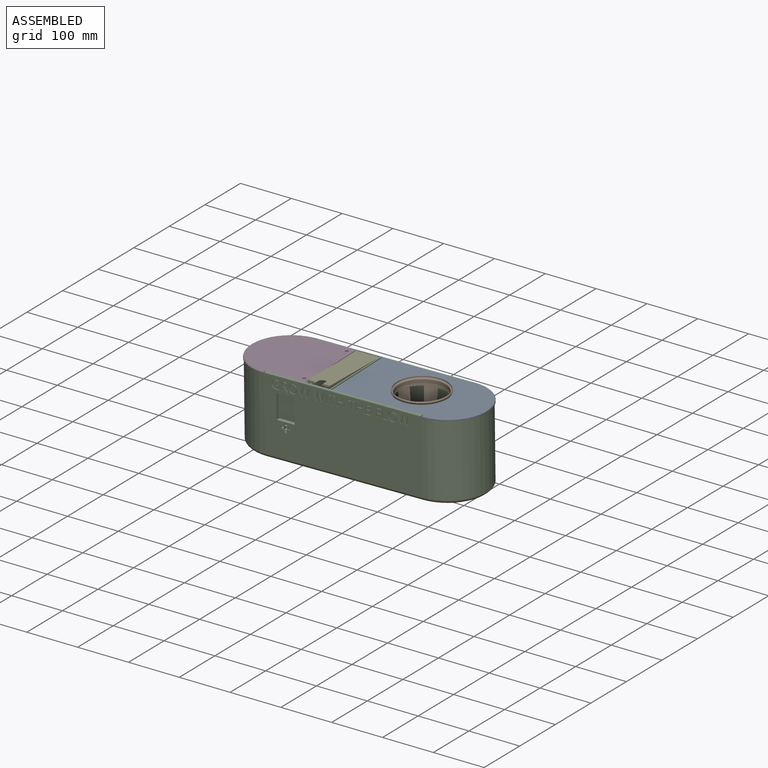
[diagram: assembled view]
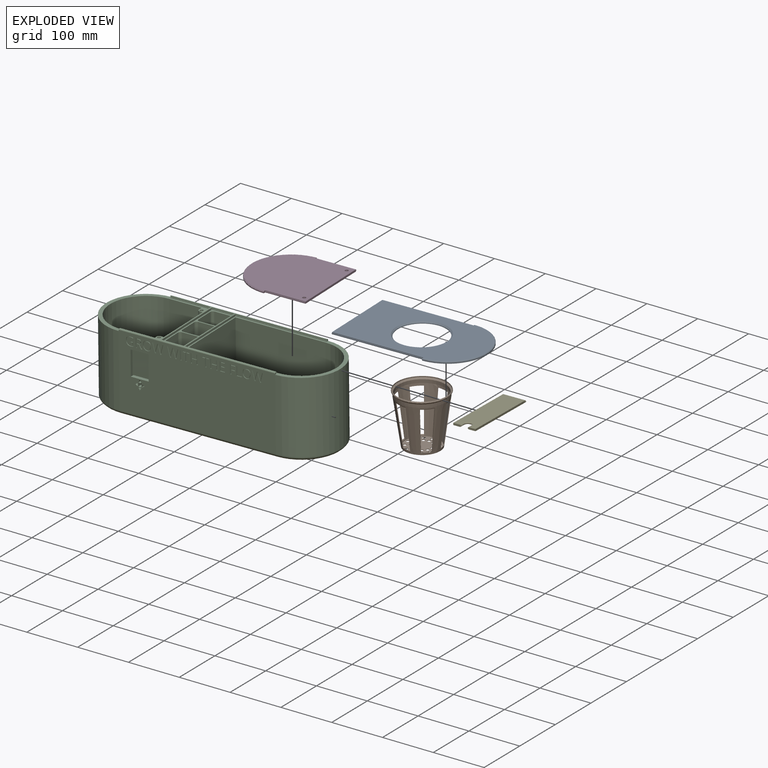
[diagram: exploded view]
GUIDED TOUR — MATED ASSEMBLY (Onshape document b9ed7c7404a0d34ba4e9409d, AutoMate assembly b9ed7c7404a0d34ba4e9409d_0d373959d7b444e8e6529714_94a75fd1ac7c09031d9b1d9e_default)

This assembly has 5 components, labeled P0..P4 below (a component is one placed occurrence of a part; the same part can appear more than once), held together by 4 mates. A mate is a constraint between two components; its type names the relative motion it leaves free:
  CYLINDRICAL — leaves both rotation about and translation along the listed axis free,
  REVOLUTE — leaves rotation about the listed axis free (a hinge),
  SLIDER — leaves translation along the listed axis free.
Axis/direction vectors are unit vectors and 'through' points are millimeter coordinates, both in the assembly's world frame.

MATES
  1. SLIDER "Slider 1": P3 <-> P2, axis (1.000, 0.015, 0.006) through (-720.45, -145.51, 255.19) mm
  2. REVOLUTE "Revolute 1": P4 <-> P2, axis (-1.000, -0.015, -0.006) through (-680.78, -0.75, 257.48) mm
  3. SLIDER "Slider 2": P0 <-> P2, axis (-1.000, -0.015, -0.006) through (-542.81, 4.56, 257.71) mm
  4. CYLINDRICAL "Cylindrical 1": P1 <-> P0, axis (0.006, 0.010, -1.000) through (-504.59, -68.51, 256.59) mm

ASSEMBLY ORDER
  1. P1 — the base component [order verified]
  2. P0 [order verified]
  3. P2 [order verified]
  4. P3 [order verified]
  5. P4 [order verified]
(P0 verified with a relaxed clearance tolerance: the source model stores slight part interference there.)
Order-tag legend:
  [order verified] — this step's position reverses a verified removal order: the component was checked to insert without passing through the ones already placed.

Of the 5 components, 1 carries the full construction recipe — the FeatureScript program that regenerates the part's solid from scratch; the rest are supplied as boundary geometry only.
Each toured component is shown spotlighted twice — in the assembled view, then in the exploded view, where a leader line traces a displaced component back to its assembled socket (saturated green if recipe-attached, orange if geometry-only; every other component desaturated gray) — followed by its recipe or geometry summary and the mates that hold it.
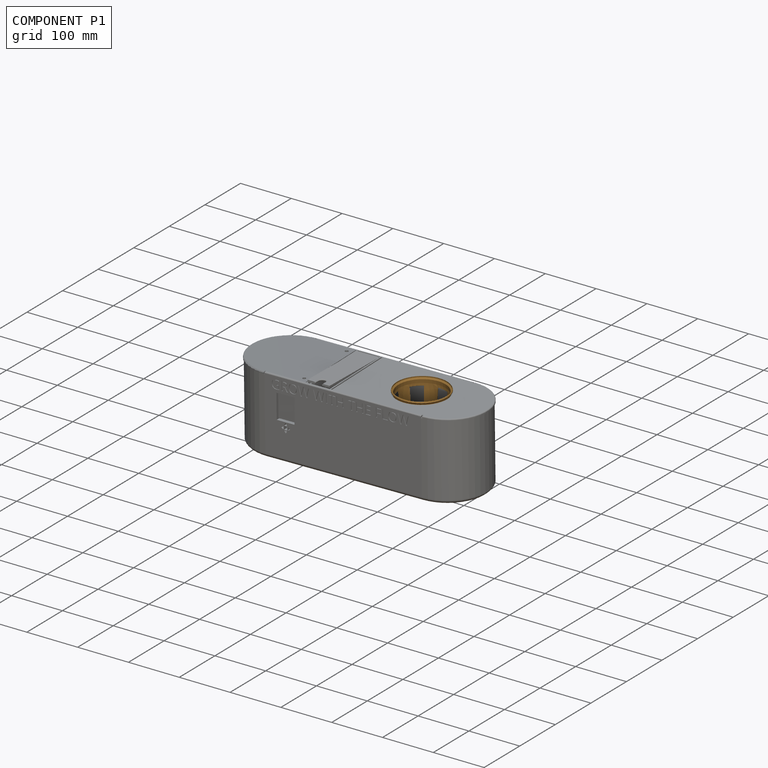
[diagram: component P1 — assembled]
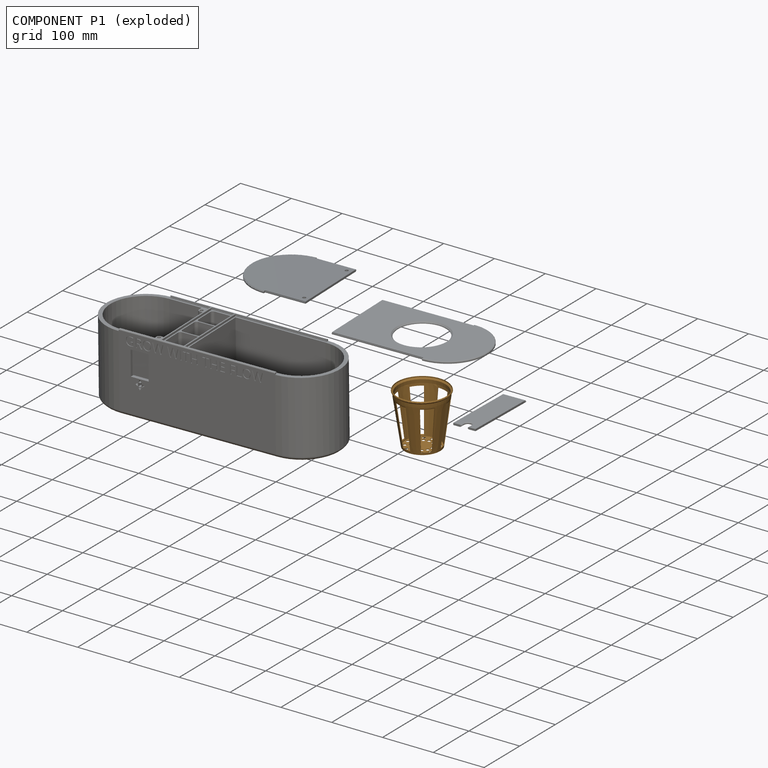
[diagram: component P1 — exploded]
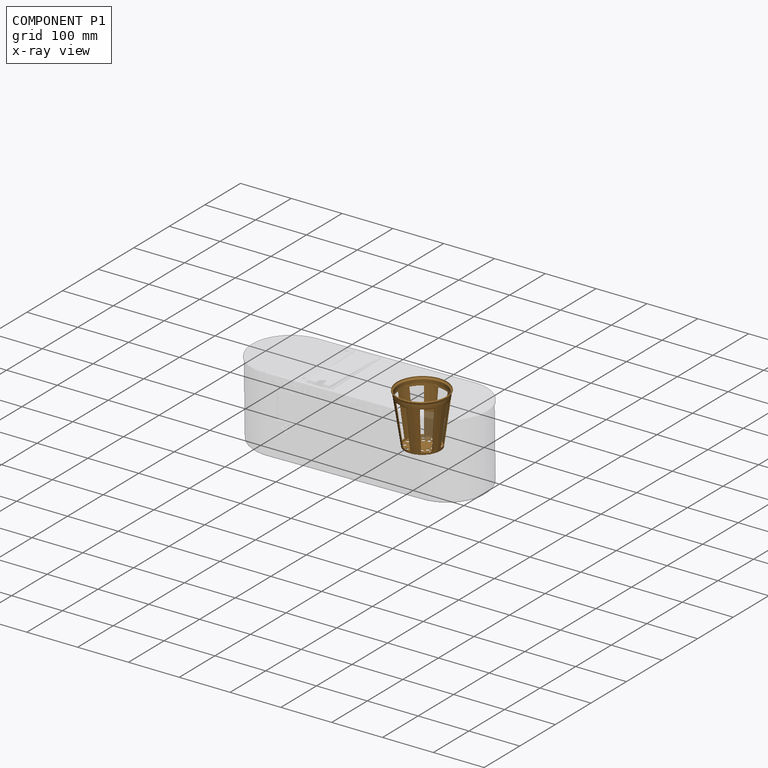
[diagram: component P1 — x-ray view]
COMPONENT P1 — geometry summary (no construction recipe available for this part):
  bounding box: 108.6 x 108.6 x 101.9 mm
  B-rep topology: 1 solid, 59 faces, 378 edges
  volume: 24089 mm^3 (2% of its bounding box)
  symmetry: 6-fold rotationally symmetric about the z axis
Held by: CYLINDRICAL mate "Cylindrical 1" to P0.
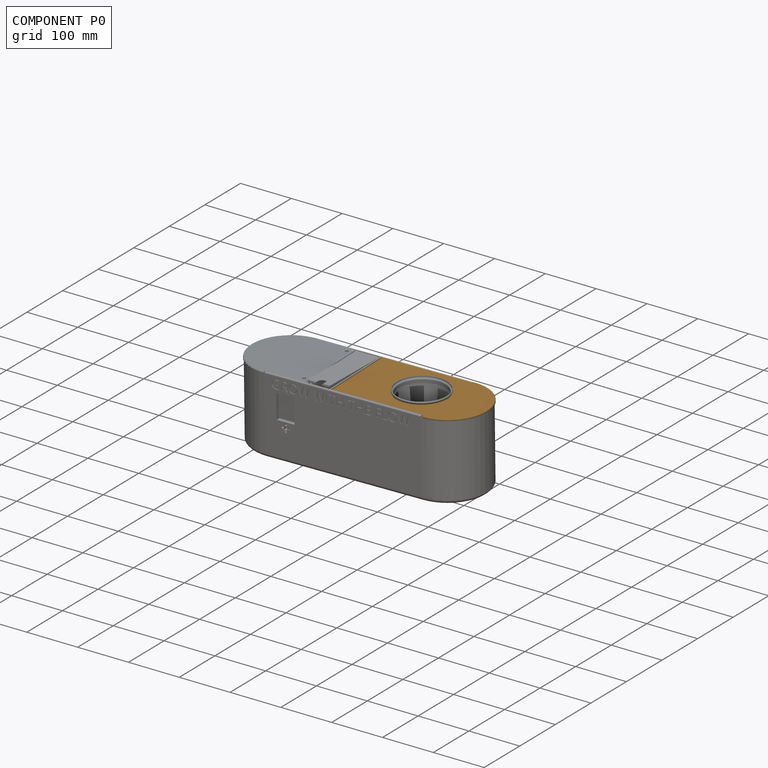
[diagram: component P0 — assembled]
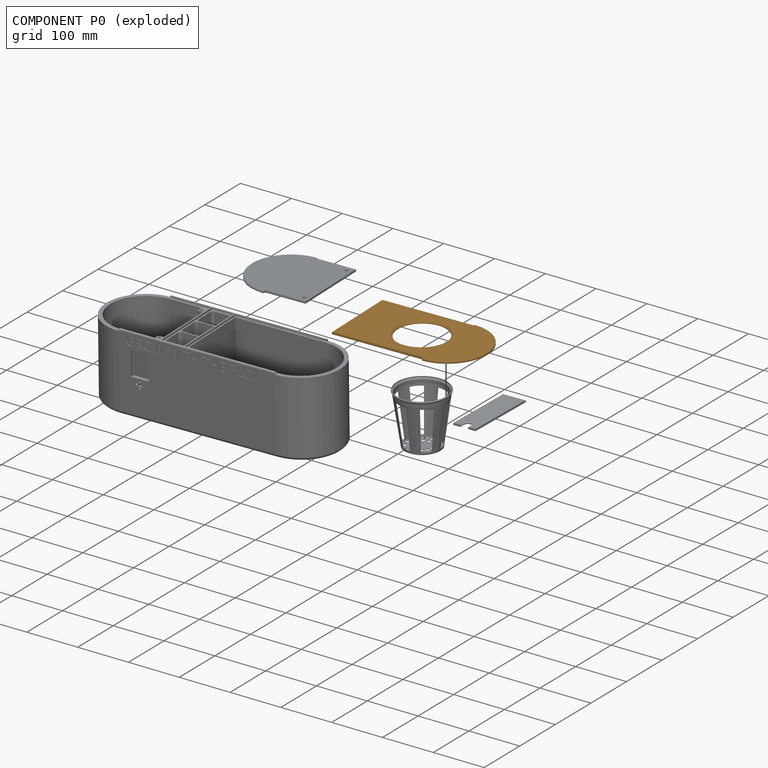
[diagram: component P0 — exploded]
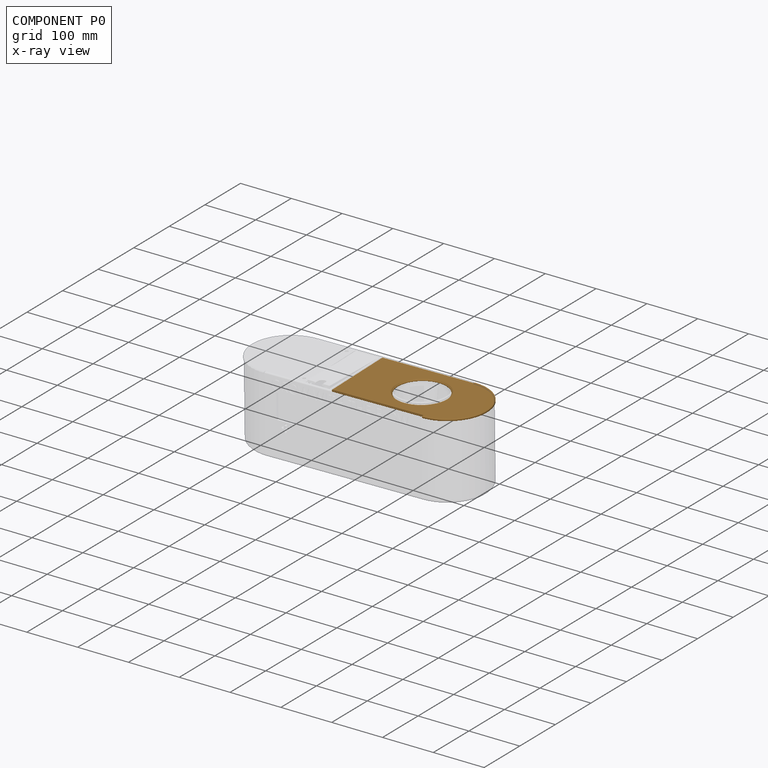
[diagram: component P0 — x-ray view]
COMPONENT P0 — geometry summary (no construction recipe available for this part):
  bounding box: 260.3 x 165.0 x 3.8 mm
  B-rep topology: 1 solid, 19 faces, 100 edges
  volume: 105058 mm^3 (64% of its bounding box)
  symmetry: mirror-symmetric across its y mid-plane
Held by: SLIDER mate "Slider 2" to P2; CYLINDRICAL mate "Cylindrical 1" to P1.
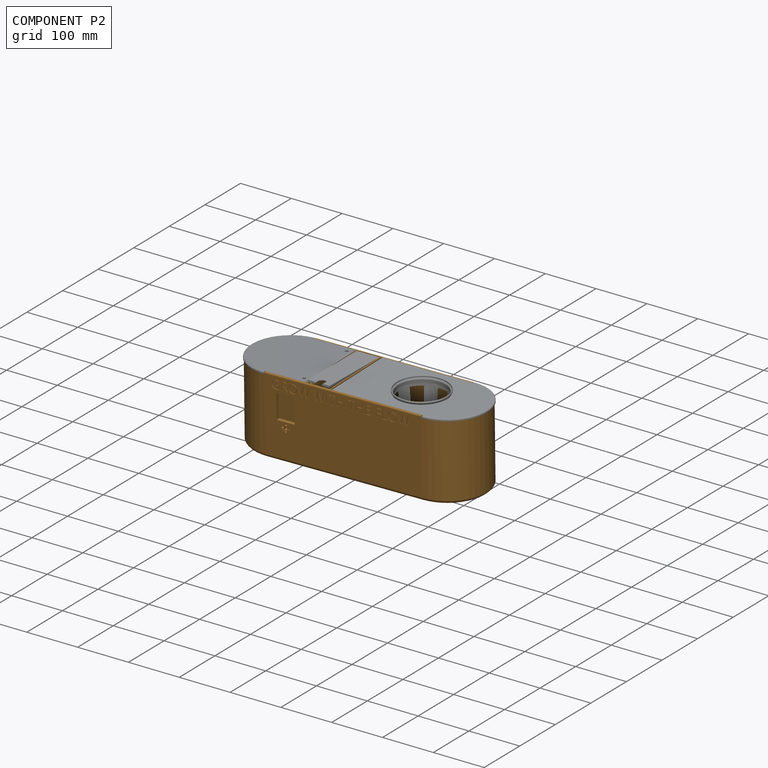
[diagram: component P2 — assembled]
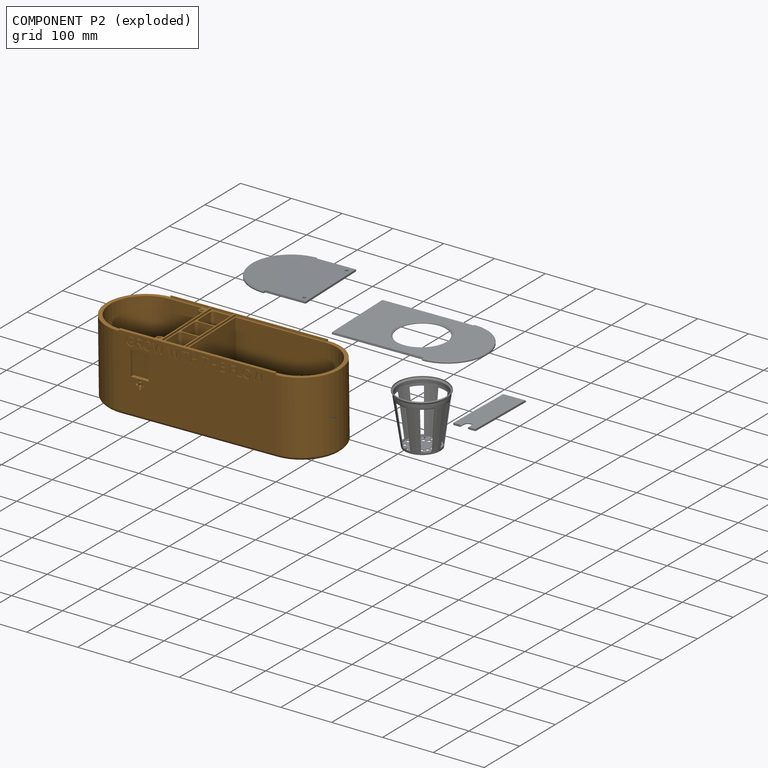
[diagram: component P2 — exploded]
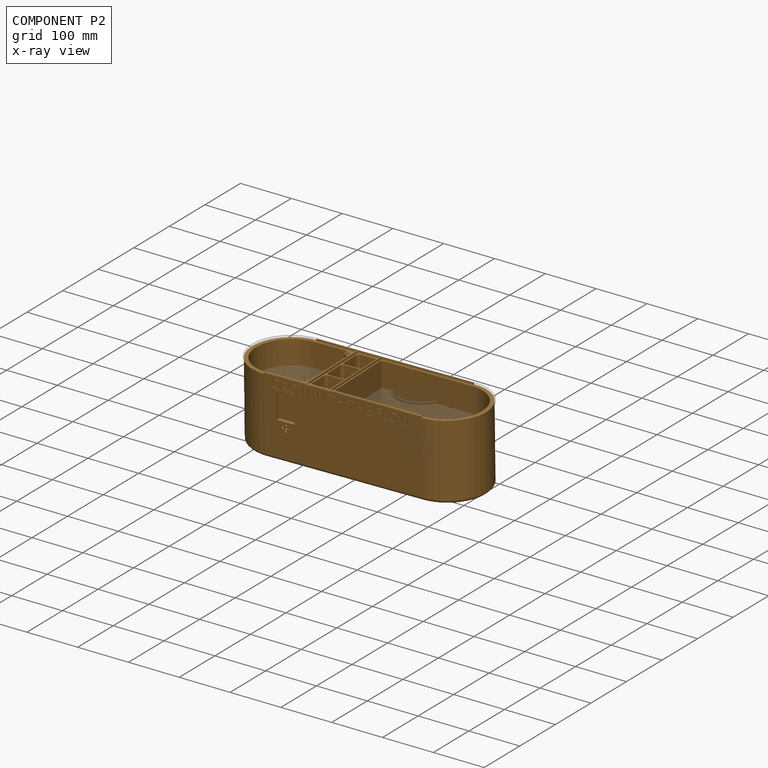
[diagram: component P2 — x-ray view]
COMPONENT P2 — geometry summary (no construction recipe available for this part):
  bounding box: 469.8 x 165.0 x 152.4 mm
  B-rep topology: 1 solid, 453 faces, 2456 edges
  volume: 1985221 mm^3 (17% of its bounding box)
Held by: SLIDER mate "Slider 1" to P3; REVOLUTE mate "Revolute 1" to P4; SLIDER mate "Slider 2" to P0.
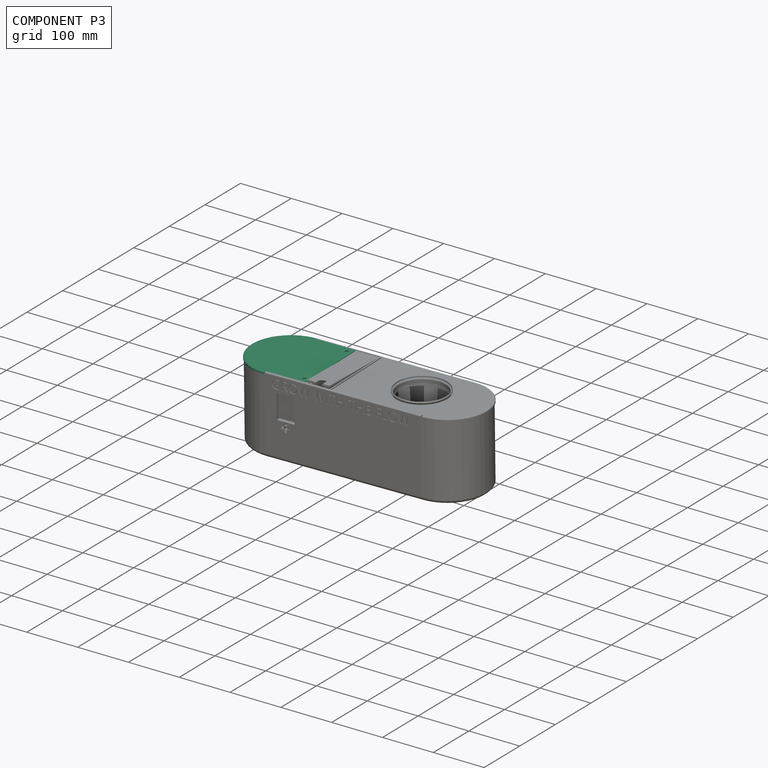
[diagram: component P3 — assembled]
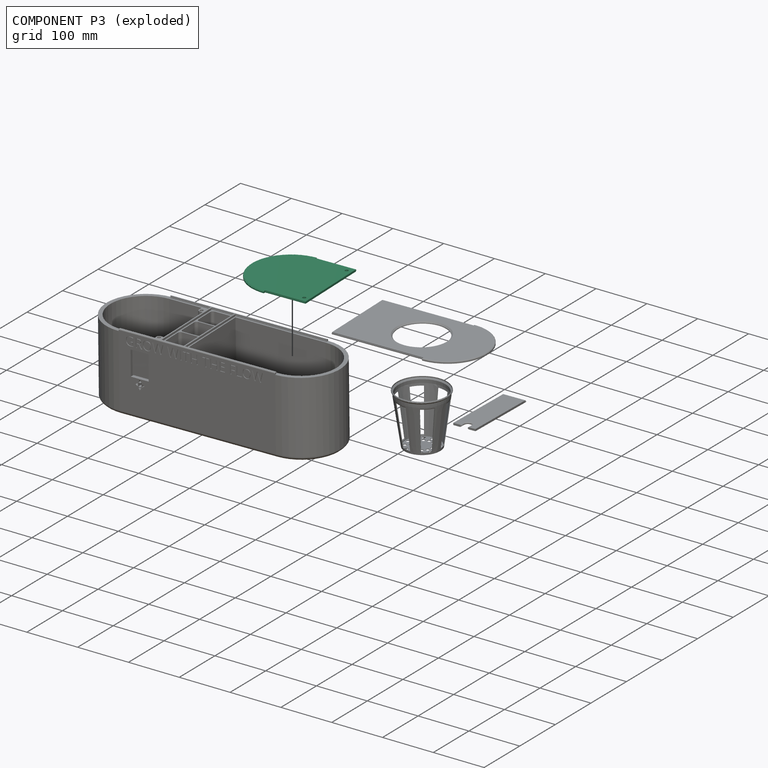
[diagram: component P3 — exploded]
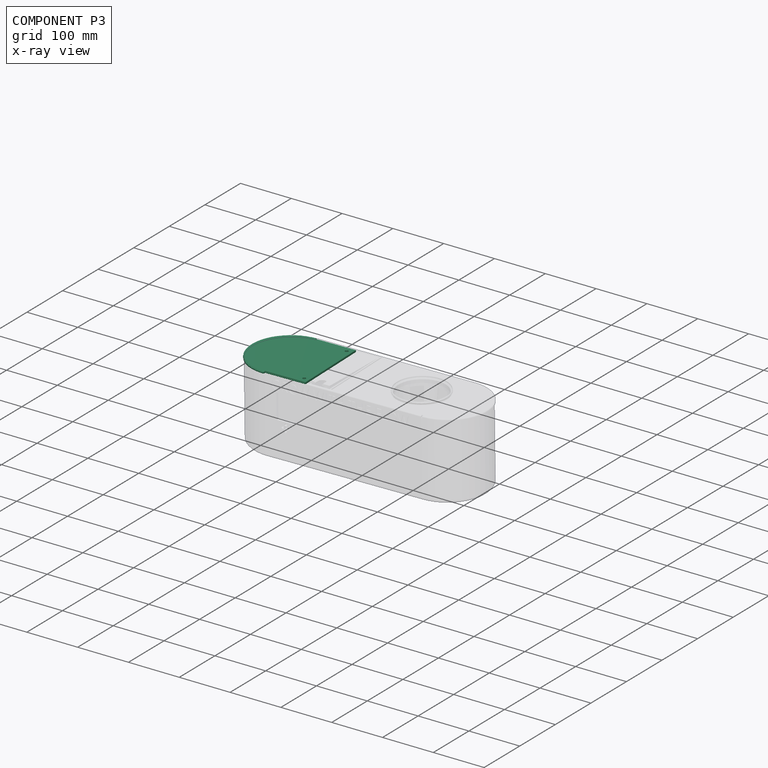
[diagram: component P3 — x-ray view]
COMPONENT P3 — recipe-attached (CADFS 00570756, mesh-verified: the recipe's output STEP matches this component's geometry to below the mesh-comparison resolution (tessellation chordal tolerance ~0.326 mm)).
Held by: SLIDER mate "Slider 1" to P2.
Construction recipe (FeatureScript — the CAD program that rebuilds this solid; sketch coordinates are in the units given by the * unit suffixes, e.g. mm):

FeatureScript 1511;
import(path : "onshape/std/geometry.fs", version : "1511.0");
import(path : "onshape/std/common.fs", version : "1511.0");
const mm = millimeter;
const VERTEX = EntityType.VERTEX;
const EDGE = EntityType.EDGE;
const FACE = EntityType.FACE;
const BODY = EntityType.BODY;
function v(x, y){return vector(x, y);}
function OD(order){return orderDisambiguation(order);}
function OSD(set){return originalSetDisambiguation(set);}
function TD(topology){return topologyDisambiguation(topology);}
function TDD(query){return trueDependencyDisambiguation(query);}
function sQuery(a, b, c) {return sketchEntityQuery(a, b, c);}

annotation { "Feature Type Name" : "Feature", "Feature Type Description" : "" }
export const myFeature = defineFeature(function(context is Context, id is Id, definition is map)
    precondition{}
    {
        {
            var Q0;
            Q0=qCreatedBy(makeId("Top.planeOp"),FACE);
            var sketch = newSketch(context, id + "F0", { "sketchPlane" : qUnion([Q0])});
            skCircle(sketch, "E0", {"center": v(0, 0) * mm, "radius": 76.2 * mm});
            skLineSegment(sketch, "E1.bottom", {"start": v(0, 76.2) * mm, "end": v(78.74, 76.2) * mm});
            skLineSegment(sketch, "E1.top", {"start": v(0, -76.2) * mm, "end": v(78.74, -76.2) * mm});
            skLineSegment(sketch, "E1.left", {"start": v(0, 76.2) * mm, "end": v(0, -76.2) * mm});
            skLineSegment(sketch, "E1.right", {"start": v(78.74, 76.2) * mm, "end": v(78.74, -76.2) * mm});
            skSolve(sketch);
        }
        {
            var Q0;
            {var subQ0=sQuery(id+"F0.wireOp",EDGE,"E1.left");Q0=makeQuery(id+"F0.imprint","IMPRINT",FACE,{"disambiguationData":[TD([[makeQuery(id+"F0.imprint","IMPRINT",EDGE,{"derivedFrom":subQ0}),-1.0]])]});}
            var Q1;
            {var subQ0=sQuery(id+"F0.wireOp",EDGE,"E1.left");Q1=makeQuery(id+"F0.imprint","IMPRINT",FACE,{"disambiguationData":[TD([[makeQuery(id+"F0.imprint","IMPRINT",EDGE,{"derivedFrom":subQ0}),1.0]])]});}
            var Q2;
            {var subQ1=sQuery(id+"F0.wireOp",EDGE,"E1.bottom");Q2=makeQuery(id+"F0.imprint","IMPRINT",FACE,{"disambiguationData":[TD([[makeQuery(id+"F0.imprint","IMPRINT",EDGE,{"derivedFrom":subQ1}),-1.0]])]});}
            extrude(context, id + "F1", {"entities" : qUnion([Q0, Q1, Q2]), "depth" : 3.8 * mm, "offsetDistance" : 25.4 * mm});
        }
        {
            var Q0;
            Q0=makeQuery(id+"F1.opExtrude","SWEPT_FACE",FACE,{"disambiguationData":[OSD([sQuery(id+"F0.wireOp",EDGE,"E1.right")])]});
            var sketch = newSketch(context, id + "F2", { "sketchPlane" : qUnion([Q0])});
            skLineSegment(sketch, "E2.bottom", {"start": v(-76.2, 3.81) * mm, "end": v(-73.66, 3.81) * mm});
            skLineSegment(sketch, "E2.top", {"start": v(-76.2, 0) * mm, "end": v(-73.66, 0) * mm});
            skLineSegment(sketch, "E2.left", {"start": v(-76.2, 3.81) * mm, "end": v(-76.2, 0) * mm});
            skLineSegment(sketch, "E2.right", {"start": v(-73.66, 3.81) * mm, "end": v(-73.66, 0) * mm});
            skLineSegment(sketch, "E3", {"start": v(0, 0) * mm, "end": v(0, 3.81) * mm});
            skLineSegment(sketch, "E4.MirrorCS", {"start": v(73.66, 3.81) * mm, "end": v(73.66, 0) * mm});
            skLineSegment(sketch, "E5.MirrorCS", {"start": v(76.2, 3.81) * mm, "end": v(76.2, 0) * mm});
            skLineSegment(sketch, "E6.MirrorCS", {"start": v(76.2, 3.81) * mm, "end": v(73.66, 3.81) * mm});
            skLineSegment(sketch, "E7.MirrorCS", {"start": v(76.2, 0) * mm, "end": v(73.66, 0) * mm});
            skSolve(sketch);
        }
        {
            var Q0;
            Q0=makeQuery(id+"F2.imprint","IMPRINT",FACE,{"disambiguationData":[TD([[makeQuery(id+"F2.imprint","IMPRINT",EDGE,{"derivedFrom":sQuery(id+"F2.wireOp",EDGE,"E2.bottom")}),1.0]])]});
            var Q1;
            Q1=makeQuery(id+"F2.imprint","IMPRINT",FACE,{"disambiguationData":[TD([[makeQuery(id+"F2.imprint","IMPRINT",EDGE,{"derivedFrom":sQuery(id+"F2.wireOp",EDGE,"E4.MirrorCS")}),1.0]])]});
            extrude(context, id + "F3", {"entities" : qUnion([Q0, Q1]), "operationType" : NewBodyOperationType.REMOVE, "oppositeDirection" : true, "depth" : 78.74 * mm, "offsetDistance" : 25.4 * mm});
        }
        {
            var Q0;
            Q0=makeQuery(id+"F1.opExtrude","SWEPT_FACE",FACE,{"disambiguationData":[OSD([sQuery(id+"F0.wireOp",EDGE,"E1.right")])]});
            var sketch = newSketch(context, id + "F4", { "sketchPlane" : qUnion([Q0])});
            skLineSegment(sketch, "E8", {"start": v(-73.66, 1.9) * mm, "end": v(73.66, 1.9) * mm});
            skLineSegment(sketch, "E9", {"start": v(0, 0) * mm, "end": v(0, 3.81) * mm});
            skLineSegment(sketch, "E10.bottom", {"start": v(-73.66, 3.81) * mm, "end": v(-72.4, 3.81) * mm});
            skLineSegment(sketch, "E10.top", {"start": v(-73.66, 2.54) * mm, "end": v(-72.4, 2.54) * mm});
            skLineSegment(sketch, "E10.left", {"start": v(-73.66, 3.81) * mm, "end": v(-73.66, 2.54) * mm});
            skLineSegment(sketch, "E10.right", {"start": v(-72.4, 3.81) * mm, "end": v(-72.4, 2.54) * mm});
            skLineSegment(sketch, "E11.MirrorCS", {"start": v(-73.66, 1.27) * mm, "end": v(-72.4, 1.27) * mm});
            skLineSegment(sketch, "E12.MirrorCS", {"start": v(-72.4, 0) * mm, "end": v(-72.4, 1.27) * mm});
            skLineSegment(sketch, "E13.MirrorCS", {"start": v(-73.66, 0) * mm, "end": v(-73.66, 1.27) * mm});
            skLineSegment(sketch, "E14.MirrorCS", {"start": v(-73.66, 0) * mm, "end": v(-72.4, 0) * mm});
            skLineSegment(sketch, "E15.MirrorCS", {"start": v(72.4, 3.81) * mm, "end": v(72.4, 2.54) * mm});
            skLineSegment(sketch, "E16.MirrorCS", {"start": v(73.66, 2.54) * mm, "end": v(72.4, 2.54) * mm});
            skLineSegment(sketch, "E17.MirrorCS", {"start": v(73.66, 3.81) * mm, "end": v(73.66, 2.54) * mm});
            skLineSegment(sketch, "E18.MirrorCS", {"start": v(73.66, 3.81) * mm, "end": v(72.4, 3.81) * mm});
            skLineSegment(sketch, "E19.MirrorCS", {"start": v(73.66, 1.27) * mm, "end": v(72.4, 1.27) * mm});
            skLineSegment(sketch, "E20.MirrorCS", {"start": v(73.66, 0) * mm, "end": v(73.66, 1.27) * mm});
            skLineSegment(sketch, "E21.MirrorCS", {"start": v(73.66, 0) * mm, "end": v(72.4, 0) * mm});
            skLineSegment(sketch, "E22.MirrorCS", {"start": v(72.4, 0) * mm, "end": v(72.4, 1.27) * mm});
            skSolve(sketch);
        }
        {
            var Q0;
            Q0=makeQuery(id+"F4.imprint","IMPRINT",FACE,{"disambiguationData":[TD([[makeQuery(id+"F4.imprint","IMPRINT",EDGE,{"derivedFrom":sQuery(id+"F4.wireOp",EDGE,"E10.bottom")}),1.0]])]});
            var Q1;
            Q1=makeQuery(id+"F4.imprint","IMPRINT",FACE,{"disambiguationData":[TD([[makeQuery(id+"F4.imprint","IMPRINT",EDGE,{"derivedFrom":sQuery(id+"F4.wireOp",EDGE,"E11.MirrorCS")}),-1.0]])]});
            var Q2;
            Q2=makeQuery(id+"F4.imprint","IMPRINT",FACE,{"disambiguationData":[TD([[makeQuery(id+"F4.imprint","IMPRINT",EDGE,{"derivedFrom":sQuery(id+"F4.wireOp",EDGE,"E15.MirrorCS")}),1.0]])]});
            var Q3;
            Q3=makeQuery(id+"F4.imprint","IMPRINT",FACE,{"disambiguationData":[TD([[makeQuery(id+"F4.imprint","IMPRINT",EDGE,{"derivedFrom":sQuery(id+"F4.wireOp",EDGE,"E19.MirrorCS")}),1.0]])]});
            extrude(context, id + "F5", {"entities" : qUnion([Q0, Q1, Q2, Q3]), "operationType" : NewBodyOperationType.REMOVE, "oppositeDirection" : true, "depth" : 78.74 * mm, "offsetDistance" : 25.4 * mm});
        }
        {
            var Q0;
            Q0=makeQuery(id+"F1.opExtrude","CAP_FACE",FACE,{"disambiguationData":[OSD([sQuery(id+"F0.wireOp",EDGE,"E0"),sQuery(id+"F0.wireOp",EDGE,"E1.bottom"),sQuery(id+"F0.wireOp",EDGE,"E1.top"),sQuery(id+"F0.wireOp",EDGE,"E1.right")])],"isStart":false});
            var sketch = newSketch(context, id + "F6", { "sketchPlane" : qUnion([Q0])});
            skCircle(sketch, "E23", {"center": v(68.58, 60.96) * mm, "radius": 3.18 * mm});
            skCircle(sketch, "E24", {"center": v(68.58, -60.96) * mm, "radius": 3.18 * mm});
            skSolve(sketch);
        }
        {
            var Q0;
            Q0=makeQuery(id+"F6.imprint","IMPRINT",FACE,{"disambiguationData":[TD([[makeQuery(id+"F6.imprint","IMPRINT",EDGE,{"derivedFrom":sQuery(id+"F6.wireOp",EDGE,"E23")}),1.0]])]});
            var Q1;
            Q1=makeQuery(id+"F6.imprint","IMPRINT",FACE,{"disambiguationData":[TD([[makeQuery(id+"F6.imprint","IMPRINT",EDGE,{"derivedFrom":sQuery(id+"F6.wireOp",EDGE,"BoNyElww-dP8s-Om9l-tDQR-4JIRlCJVs43c")}),1.0]])]});
            var Q2;
            Q2=makeQuery(id+"F6.imprint","IMPRINT",FACE,{"disambiguationData":[TD([[makeQuery(id+"F6.imprint","IMPRINT",EDGE,{"derivedFrom":sQuery(id+"F6.wireOp",EDGE,"E24")}),1.0]])]});
            extrude(context, id + "F7", {"entities" : qUnion([Q0, Q1, Q2]), "operationType" : NewBodyOperationType.REMOVE, "oppositeDirection" : true, "depth" : 25.4 * mm, "offsetDistance" : 25.4 * mm});
        }
        {
            var Q0;
            Q0=makeQuery(id+"F1.opExtrude","CAP_EDGE",EDGE,{"disambiguationData":[OSD([sQuery(id+"F0.wireOp",EDGE,"E0")])],"isStart":false});
            fillet(context, id + "F8", {"entities" : qUnion([Q0]), "radius" : 2.03 * mm, "tangentPropagation" : true, "allowEdgeOverflow" : false});
        }
    });
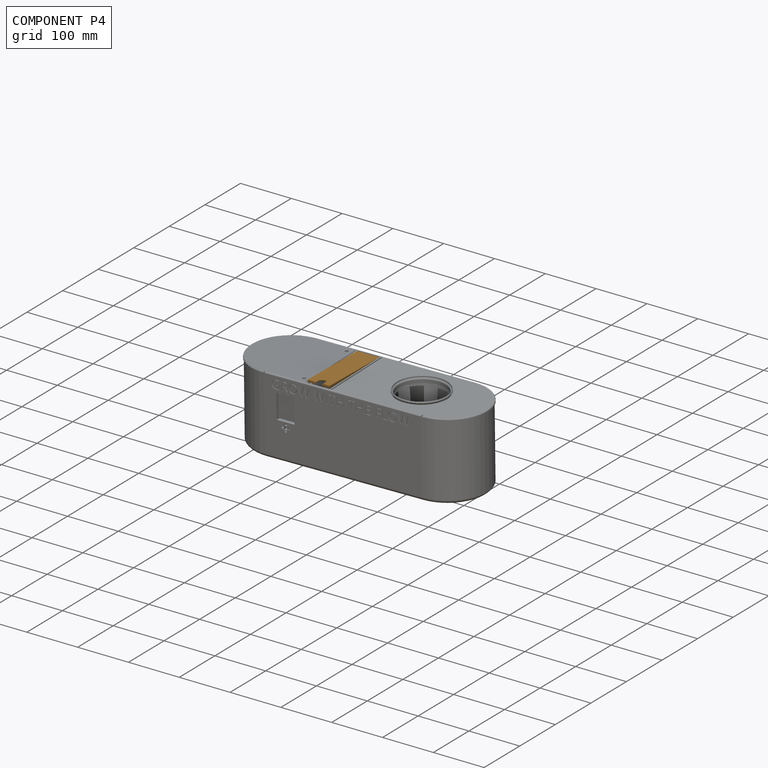
[diagram: component P4 — assembled]
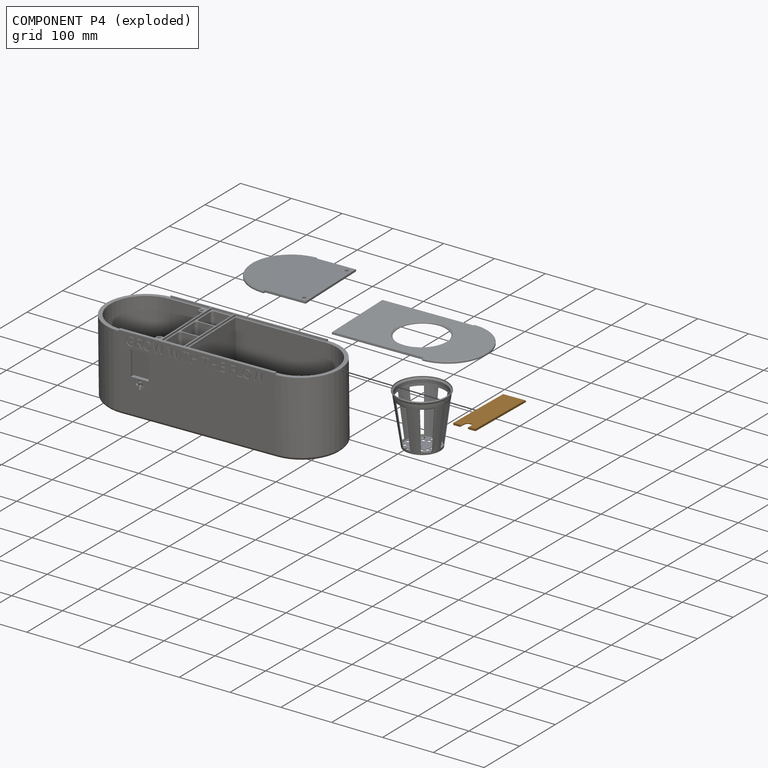
[diagram: component P4 — exploded]
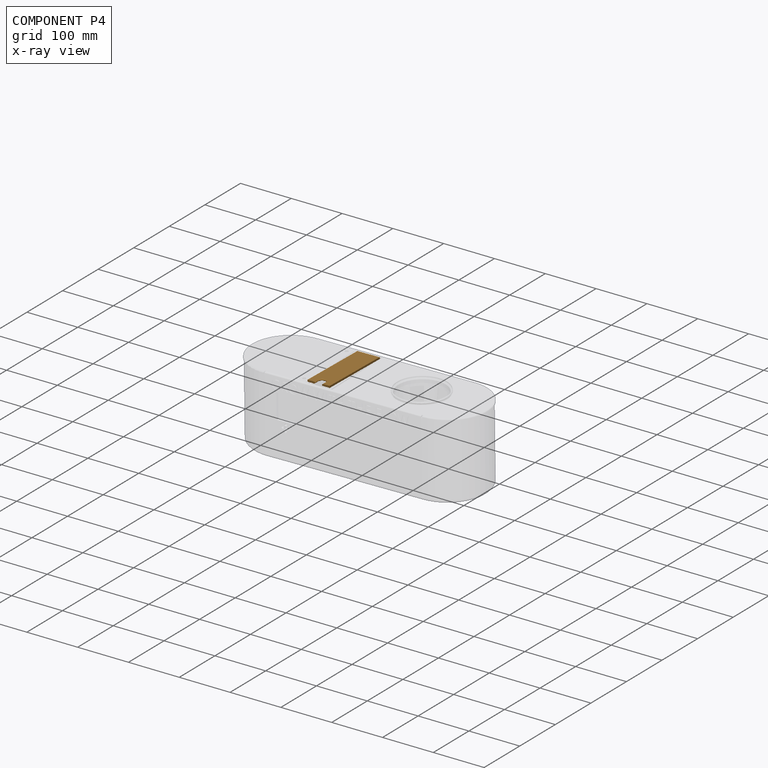
[diagram: component P4 — x-ray view]
COMPONENT P4 — geometry summary (no construction recipe available for this part):
  bounding box: 144.8 x 45.7 x 3.8 mm
  B-rep topology: 1 solid, 17 faces, 78 edges
  volume: 22908 mm^3 (91% of its bounding box)
  symmetry: 2-fold rotationally symmetric about the y axis; mirror-symmetric across its x mid-plane, z mid-plane
Held by: REVOLUTE mate "Revolute 1" to P2.
PROVENANCE & LICENSES
Assembly (occurrences, transforms, mates, per-part STEP geometry): AutoMate dataset, Zenodo record 7776208, CC0.
Construction recipes: CADFS (HuggingFace VladPyatov/CADFS, CC-BY-4.0, layered over the ABC dataset), FeatureScript reconstruction programs keyed by ABC model id.
Join: ABC meta listings map ABC model id -> Onshape documentId; within a shared document, parts are matched by geometric signature (bounding-box dims + volume at 0.1% relative tolerance, exact B-rep face/solid counts).
Verification: 1 of this assembly's 5 components carries a recipe attachment, and every attachment is mesh-verified: the CADFS STEP and the AutoMate member STEP were compared as meshes in their shared local frame (symmetric sampled-point-to-mesh distance); worst across the 1 attachment: below the mesh-comparison resolution (tessellation chordal tolerance ~0.326 mm) on a 217 mm part.
Renders: orthographic iso camera (az 35 / el 25); the floor grid conveys scale (grid pitch printed in each image; no ruler). In the exploded view each component is displaced by its stored offset vector: the offsets alone carry the explosion direction (mate normal/axis signs are not orientation cues and do not encode it), and separation distances are assigned per mate-chain, not proportionally to assembly-order depth.
